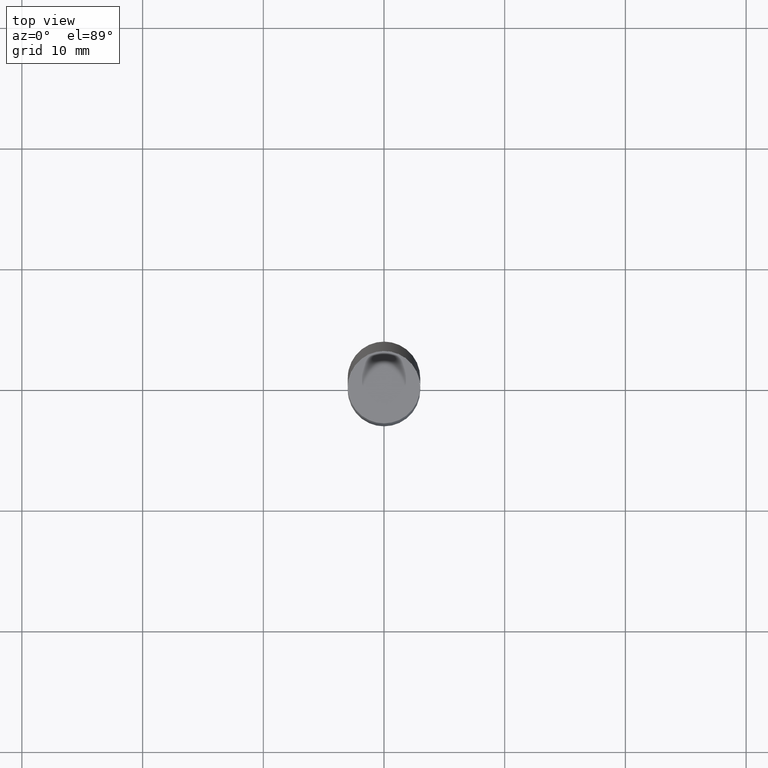
[diagram: clean part render]
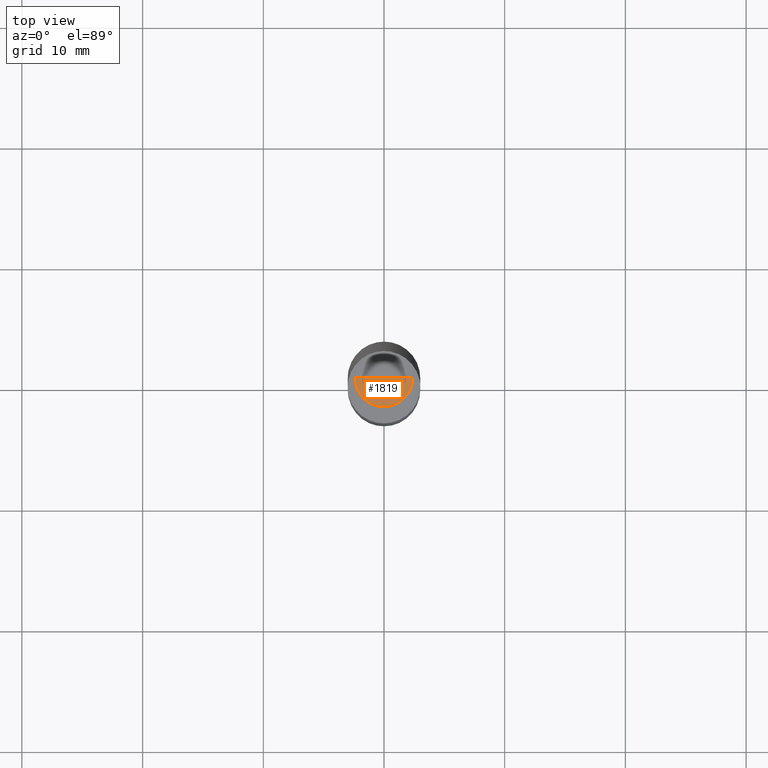
[diagram: same view with one face highlighted and labeled with its STEP entity id]
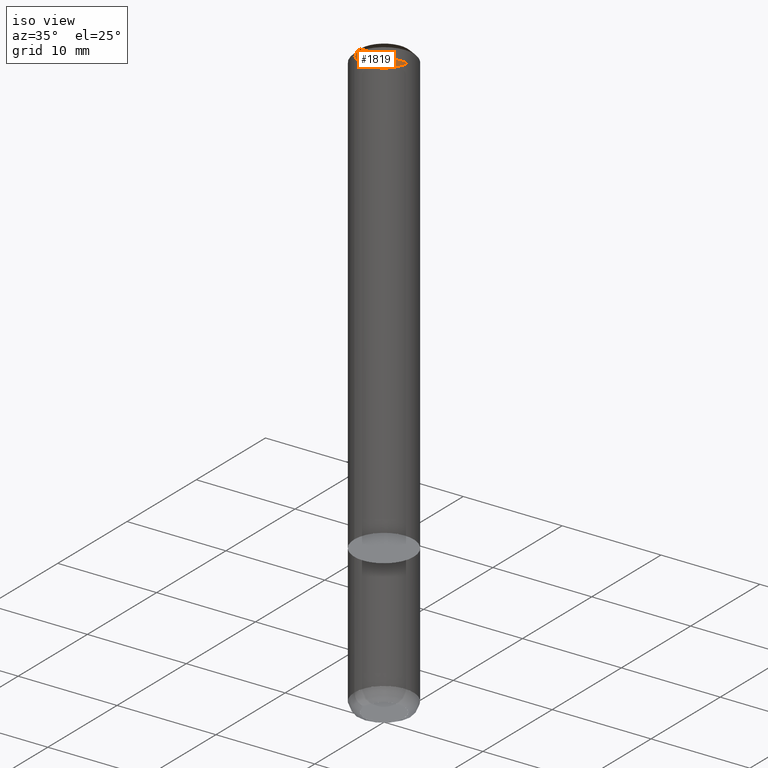
[diagram: same view with one face highlighted and labeled with its STEP entity id]
A machine part, top view. The second image highlights one B-rep face of the part: STEP entity #1819.
A second angle (iso view) of the same face is appended — the face is thin or edge-on in the first view.
In plain terms, the highlighted face is a freeform B-spline surface patch.
Its self-contained STEP definition (entity closure, byte-faithful):
#1507=CARTESIAN_POINT('',(2.4,0.0,45.0));
#1511=CARTESIAN_POINT('',(-2.4,0.0,45.0));
#1512=CARTESIAN_POINT('',(0.0,0.0,45.0));
#1516=CARTESIAN_POINT('',(-2.4,-2.4,45.0));
#1517=CARTESIAN_POINT('',(0.0,-2.4,45.0));
#1518=CARTESIAN_POINT('',(2.4,-2.4,45.0));
#1804=(
BOUNDED_SURFACE()
B_SPLINE_SURFACE(1,2,(
(#1511,#1516,#1517,#1518,#1507),
(#1512,#1512,#1512,#1512,#1512)
), .UNSPECIFIED.,.F.,.F.,.F.)
B_SPLINE_SURFACE_WITH_KNOTS((2,2),(3,2,3),(
0.0,1.0),(
0.0,0.5,1.0), .UNSPECIFIED.)
GEOMETRIC_REPRESENTATION_ITEM()
RATIONAL_B_SPLINE_SURFACE(((1.0,0.707106781187,1.0,0.707106781187,1.0),
(1.0,0.707106781187,1.0,0.707106781187,1.0)
))
REPRESENTATION_ITEM('')
SURFACE()
);
#1805=(
BOUNDED_CURVE()
B_SPLINE_CURVE(1,(#1512,#1507),.UNSPECIFIED.,.F.,.F.)
B_SPLINE_CURVE_WITH_KNOTS((2,2),
(0.0,1.0),.UNSPECIFIED.)
CURVE()
GEOMETRIC_REPRESENTATION_ITEM()
RATIONAL_B_SPLINE_CURVE((1.0,1.0))
REPRESENTATION_ITEM('')
);
#1806=(
BOUNDED_CURVE()
B_SPLINE_CURVE(2,(#1507,#1518,#1517,#1516,#1511),.UNSPECIFIED.,.F.,.F.)
B_SPLINE_CURVE_WITH_KNOTS((3,2,3),
(0.0,0.5,1.0),.UNSPECIFIED.)
CURVE()
GEOMETRIC_REPRESENTATION_ITEM()
RATIONAL_B_SPLINE_CURVE((1.0,0.707106781187,1.0,0.707106781187,1.0))
REPRESENTATION_ITEM('')
);
#1807=(
BOUNDED_CURVE()
B_SPLINE_CURVE(1,(#1511,#1512),.UNSPECIFIED.,.F.,.F.)
B_SPLINE_CURVE_WITH_KNOTS((2,2),
(0.0,1.0),.UNSPECIFIED.)
CURVE()
GEOMETRIC_REPRESENTATION_ITEM()
RATIONAL_B_SPLINE_CURVE((1.0,1.0))
REPRESENTATION_ITEM('')
);
#1808=VERTEX_POINT('',#1507);
#1809=VERTEX_POINT('',#1511);
#1810=VERTEX_POINT('',#1512);
#1811=EDGE_CURVE('',#1810,#1808,#1805,.T.);
#1812=EDGE_CURVE('',#1808,#1809,#1806,.T.);
#1813=EDGE_CURVE('',#1809,#1810,#1807,.T.);
#1814=ORIENTED_EDGE('',*,*,#1811,.T.);
#1815=ORIENTED_EDGE('',*,*,#1812,.T.);
#1816=ORIENTED_EDGE('',*,*,#1813,.T.);
#1817=EDGE_LOOP('',(#1814,#1815,#1816));
#1818=FACE_OUTER_BOUND('',#1817,.T.);
#1819=ADVANCED_FACE('',(#1818),#1804,.T.);